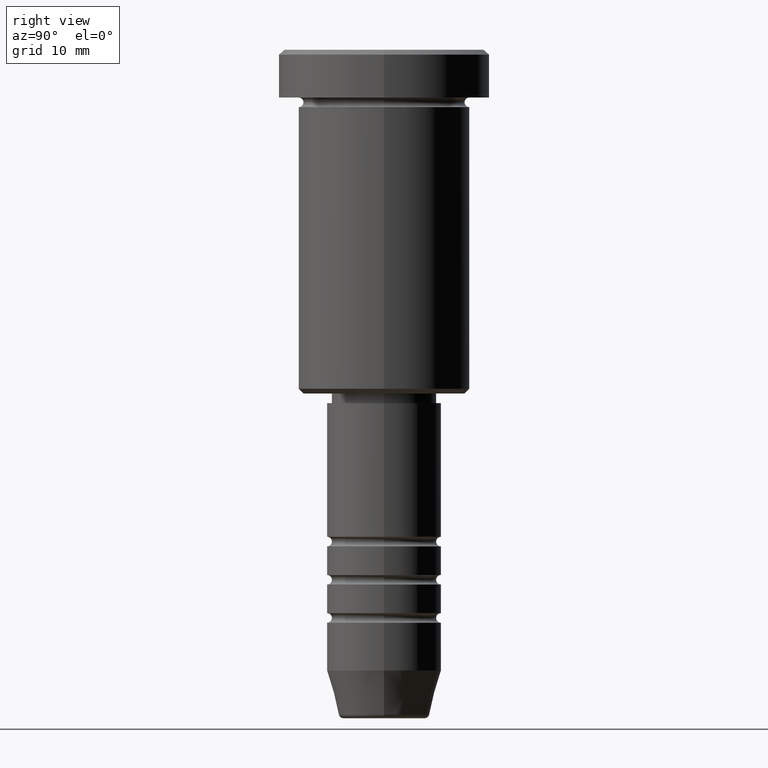
[diagram: clean part render]
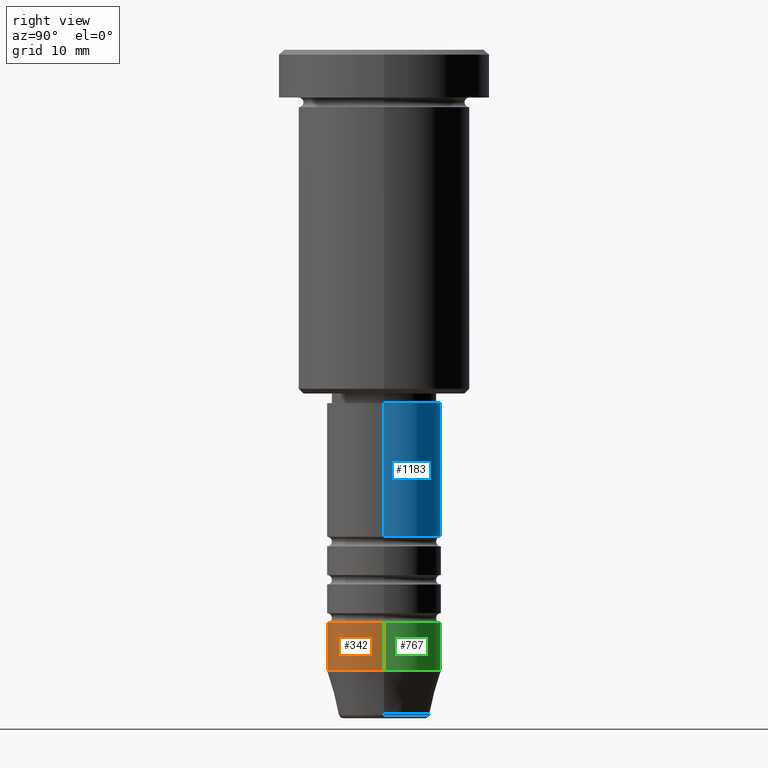
[diagram: same view with three faces highlighted in distinct colors, each labeled with its STEP entity id]
A machine part, right view with three faces highlighted in distinct colors.
Their STEP definitions:

[orange] entity #342 — the highlighted cylindrical surface (partial cylindrical patch) has radius 6 mm, axis along (-0, -0, 1).
#30 = AXIS2_PLACEMENT_3D ( 'NONE', #334, #918, #182 ) ;
#73 = EDGE_CURVE ( 'NONE', #648, #778, #1151, .T. ) ;
#78 = CARTESIAN_POINT ( 'NONE',  ( -6.000000000000000000, 7.347880794884119736E-16, -65.00000000000000000 ) ) ;
#109 = VECTOR ( 'NONE', #1150, 1000.000000000000000 ) ;
#153 = ORIENTED_EDGE ( 'NONE', *, *, #913, .T. ) ;
#178 = CARTESIAN_POINT ( 'NONE',  ( 6.000000000000000000, 0.000000000000000000, -65.00000000000000000 ) ) ;
#182 = DIRECTION ( 'NONE',  ( 1.000000000000000000, 0.000000000000000000, 0.000000000000000000 ) ) ;
#183 = DIRECTION ( 'NONE',  ( 1.000000000000000000, 0.000000000000000000, 0.000000000000000000 ) ) ;
#215 = LINE ( 'NONE', #931, #928 ) ;
#302 = VERTEX_POINT ( 'NONE', #78 ) ;
#317 = EDGE_LOOP ( 'NONE', ( #414, #714, #153, #503 ) ) ;
#318 = EDGE_CURVE ( 'NONE', #302, #344, #1118, .T. ) ;
#334 = CARTESIAN_POINT ( 'NONE',  ( 0.000000000000000000, 0.000000000000000000, -65.00000000000000000 ) ) ;
#342 = ADVANCED_FACE ( 'NONE', ( #747 ), #378, .T. ) ;
#344 = VERTEX_POINT ( 'NONE', #178 ) ;
#354 = CARTESIAN_POINT ( 'NONE',  ( 5.999999999999999112, 0.000000000000000000, -60.00000000000000711 ) ) ;
#378 = CYLINDRICAL_SURFACE ( 'NONE', #685, 6.000000000000000000 ) ;
#414 = ORIENTED_EDGE ( 'NONE', *, *, #1023, .F. ) ;
#503 = ORIENTED_EDGE ( 'NONE', *, *, #73, .F. ) ;
#581 = CARTESIAN_POINT ( 'NONE',  ( 0.000000000000000000, 0.000000000000000000, -60.00000000000000711 ) ) ;
#633 = LINE ( 'NONE', #740, #109 ) ;
#648 = VERTEX_POINT ( 'NONE', #1067 ) ;
#685 = AXIS2_PLACEMENT_3D ( 'NONE', #1137, #992, #812 ) ;
#714 = ORIENTED_EDGE ( 'NONE', *, *, #318, .T. ) ;
#740 = CARTESIAN_POINT ( 'NONE',  ( 6.000000000000000000, 0.000000000000000000, 0.000000000000000000 ) ) ;
#747 = FACE_OUTER_BOUND ( 'NONE', #317, .T. ) ;
#756 = AXIS2_PLACEMENT_3D ( 'NONE', #581, #826, #183 ) ;
#778 = VERTEX_POINT ( 'NONE', #354 ) ;
#812 = DIRECTION ( 'NONE',  ( 1.000000000000000000, 0.000000000000000000, 0.000000000000000000 ) ) ;
#826 = DIRECTION ( 'NONE',  ( -0.000000000000000000, -0.000000000000000000, 1.000000000000000000 ) ) ;
#913 = EDGE_CURVE ( 'NONE', #344, #778, #633, .T. ) ;
#918 = DIRECTION ( 'NONE',  ( -0.000000000000000000, -0.000000000000000000, 1.000000000000000000 ) ) ;
#928 = VECTOR ( 'NONE', #1040, 1000.000000000000000 ) ;
#931 = CARTESIAN_POINT ( 'NONE',  ( -6.000000000000000000, 7.347880794884119736E-16, 0.000000000000000000 ) ) ;
#992 = DIRECTION ( 'NONE',  ( -0.000000000000000000, -0.000000000000000000, 1.000000000000000000 ) ) ;
#1023 = EDGE_CURVE ( 'NONE', #302, #648, #215, .T. ) ;
#1040 = DIRECTION ( 'NONE',  ( -0.000000000000000000, -0.000000000000000000, 1.000000000000000000 ) ) ;
#1067 = CARTESIAN_POINT ( 'NONE',  ( -5.999999999999999112, 7.347880794884118750E-16, -60.00000000000000711 ) ) ;
#1118 = CIRCLE ( 'NONE', #30, 6.000000000000000000 ) ;
#1137 = CARTESIAN_POINT ( 'NONE',  ( 0.000000000000000000, 0.000000000000000000, 0.000000000000000000 ) ) ;
#1150 = DIRECTION ( 'NONE',  ( -0.000000000000000000, -0.000000000000000000, 1.000000000000000000 ) ) ;
#1151 = CIRCLE ( 'NONE', #756, 5.999999999999999112 ) ;

[blue] entity #1183 — the highlighted cylindrical surface (partial cylindrical patch) has radius 6 mm, axis along (-0, -0, 1).
#8 = LINE ( 'NONE', #769, #1004 ) ;
#282 = DIRECTION ( 'NONE',  ( 1.000000000000000000, 0.000000000000000000, 0.000000000000000000 ) ) ;
#310 = VECTOR ( 'NONE', #1085, 1000.000000000000000 ) ;
#314 = VERTEX_POINT ( 'NONE', #789 ) ;
#322 = VERTEX_POINT ( 'NONE', #460 ) ;
#328 = DIRECTION ( 'NONE',  ( 1.000000000000000000, 0.000000000000000000, 0.000000000000000000 ) ) ;
#337 = ORIENTED_EDGE ( 'NONE', *, *, #396, .T. ) ;
#339 = EDGE_CURVE ( 'NONE', #322, #314, #1037, .T. ) ;
#363 = ORIENTED_EDGE ( 'NONE', *, *, #1063, .F. ) ;
#394 = CARTESIAN_POINT ( 'NONE',  ( -6.000000000000000000, 7.347880794884119736E-16, -51.00000000000000000 ) ) ;
#396 = EDGE_CURVE ( 'NONE', #547, #314, #819, .T. ) ;
#422 = ORIENTED_EDGE ( 'NONE', *, *, #339, .F. ) ;
#460 = CARTESIAN_POINT ( 'NONE',  ( 6.000000000000000000, 0.000000000000000000, -37.00000000000000711 ) ) ;
#505 = CARTESIAN_POINT ( 'NONE',  ( 6.000000000000000000, 0.000000000000000000, -51.00000000000000000 ) ) ;
#547 = VERTEX_POINT ( 'NONE', #394 ) ;
#565 = CARTESIAN_POINT ( 'NONE',  ( -6.000000000000000000, 7.347880794884119736E-16, 0.000000000000000000 ) ) ;
#583 = DIRECTION ( 'NONE',  ( -0.000000000000000000, -0.000000000000000000, 1.000000000000000000 ) ) ;
#588 = AXIS2_PLACEMENT_3D ( 'NONE', #632, #712, #328 ) ;
#593 = AXIS2_PLACEMENT_3D ( 'NONE', #732, #623, #282 ) ;
#623 = DIRECTION ( 'NONE',  ( -0.000000000000000000, -0.000000000000000000, 1.000000000000000000 ) ) ;
#632 = CARTESIAN_POINT ( 'NONE',  ( 0.000000000000000000, 0.000000000000000000, 0.000000000000000000 ) ) ;
#639 = FACE_OUTER_BOUND ( 'NONE', #833, .T. ) ;
#684 = EDGE_CURVE ( 'NONE', #694, #547, #886, .T. ) ;
#693 = CARTESIAN_POINT ( 'NONE',  ( 0.000000000000000000, 0.000000000000000000, -51.00000000000000000 ) ) ;
#694 = VERTEX_POINT ( 'NONE', #505 ) ;
#712 = DIRECTION ( 'NONE',  ( -0.000000000000000000, -0.000000000000000000, 1.000000000000000000 ) ) ;
#732 = CARTESIAN_POINT ( 'NONE',  ( 0.000000000000000000, 0.000000000000000000, -37.00000000000000711 ) ) ;
#769 = CARTESIAN_POINT ( 'NONE',  ( 6.000000000000000000, 0.000000000000000000, 0.000000000000000000 ) ) ;
#787 = CYLINDRICAL_SURFACE ( 'NONE', #588, 6.000000000000000000 ) ;
#789 = CARTESIAN_POINT ( 'NONE',  ( -6.000000000000000000, 7.347880794884119736E-16, -37.00000000000000711 ) ) ;
#819 = LINE ( 'NONE', #565, #310 ) ;
#833 = EDGE_LOOP ( 'NONE', ( #859, #337, #422, #363 ) ) ;
#859 = ORIENTED_EDGE ( 'NONE', *, *, #684, .T. ) ;
#886 = CIRCLE ( 'NONE', #1139, 6.000000000000000000 ) ;
#1004 = VECTOR ( 'NONE', #583, 1000.000000000000000 ) ;
#1037 = CIRCLE ( 'NONE', #593, 6.000000000000000000 ) ;
#1048 = DIRECTION ( 'NONE',  ( 1.000000000000000000, 0.000000000000000000, 0.000000000000000000 ) ) ;
#1063 = EDGE_CURVE ( 'NONE', #694, #322, #8, .T. ) ;
#1085 = DIRECTION ( 'NONE',  ( -0.000000000000000000, -0.000000000000000000, 1.000000000000000000 ) ) ;
#1124 = DIRECTION ( 'NONE',  ( -0.000000000000000000, -0.000000000000000000, 1.000000000000000000 ) ) ;
#1139 = AXIS2_PLACEMENT_3D ( 'NONE', #693, #1124, #1048 ) ;
#1183 = ADVANCED_FACE ( 'NONE', ( #639 ), #787, .T. ) ;

[green] entity #767 — the highlighted cylindrical surface (partial cylindrical patch) has radius 6 mm, axis along (-0, -0, 1).
#78 = CARTESIAN_POINT ( 'NONE',  ( -6.000000000000000000, 7.347880794884119736E-16, -65.00000000000000000 ) ) ;
#109 = VECTOR ( 'NONE', #1150, 1000.000000000000000 ) ;
#116 = ORIENTED_EDGE ( 'NONE', *, *, #1023, .T. ) ;
#123 = ORIENTED_EDGE ( 'NONE', *, *, #1035, .F. ) ;
#125 = CARTESIAN_POINT ( 'NONE',  ( 0.000000000000000000, 0.000000000000000000, -60.00000000000000711 ) ) ;
#178 = CARTESIAN_POINT ( 'NONE',  ( 6.000000000000000000, 0.000000000000000000, -65.00000000000000000 ) ) ;
#181 = DIRECTION ( 'NONE',  ( -0.000000000000000000, -0.000000000000000000, 1.000000000000000000 ) ) ;
#211 = EDGE_CURVE ( 'NONE', #344, #302, #487, .T. ) ;
#215 = LINE ( 'NONE', #931, #928 ) ;
#302 = VERTEX_POINT ( 'NONE', #78 ) ;
#306 = CARTESIAN_POINT ( 'NONE',  ( 0.000000000000000000, 0.000000000000000000, -65.00000000000000000 ) ) ;
#316 = DIRECTION ( 'NONE',  ( -0.000000000000000000, -0.000000000000000000, 1.000000000000000000 ) ) ;
#326 = EDGE_LOOP ( 'NONE', ( #600, #116, #123, #382 ) ) ;
#344 = VERTEX_POINT ( 'NONE', #178 ) ;
#354 = CARTESIAN_POINT ( 'NONE',  ( 5.999999999999999112, 0.000000000000000000, -60.00000000000000711 ) ) ;
#382 = ORIENTED_EDGE ( 'NONE', *, *, #913, .F. ) ;
#416 = DIRECTION ( 'NONE',  ( 1.000000000000000000, 0.000000000000000000, 0.000000000000000000 ) ) ;
#487 = CIRCLE ( 'NONE', #591, 6.000000000000000000 ) ;
#494 = AXIS2_PLACEMENT_3D ( 'NONE', #125, #1033, #416 ) ;
#575 = AXIS2_PLACEMENT_3D ( 'NONE', #650, #181, #810 ) ;
#591 = AXIS2_PLACEMENT_3D ( 'NONE', #306, #316, #1030 ) ;
#600 = ORIENTED_EDGE ( 'NONE', *, *, #211, .T. ) ;
#633 = LINE ( 'NONE', #740, #109 ) ;
#645 = CYLINDRICAL_SURFACE ( 'NONE', #575, 6.000000000000000000 ) ;
#648 = VERTEX_POINT ( 'NONE', #1067 ) ;
#650 = CARTESIAN_POINT ( 'NONE',  ( 0.000000000000000000, 0.000000000000000000, 0.000000000000000000 ) ) ;
#740 = CARTESIAN_POINT ( 'NONE',  ( 6.000000000000000000, 0.000000000000000000, 0.000000000000000000 ) ) ;
#767 = ADVANCED_FACE ( 'NONE', ( #1090 ), #645, .T. ) ;
#778 = VERTEX_POINT ( 'NONE', #354 ) ;
#810 = DIRECTION ( 'NONE',  ( 1.000000000000000000, 0.000000000000000000, 0.000000000000000000 ) ) ;
#913 = EDGE_CURVE ( 'NONE', #344, #778, #633, .T. ) ;
#928 = VECTOR ( 'NONE', #1040, 1000.000000000000000 ) ;
#931 = CARTESIAN_POINT ( 'NONE',  ( -6.000000000000000000, 7.347880794884119736E-16, 0.000000000000000000 ) ) ;
#1006 = CIRCLE ( 'NONE', #494, 5.999999999999999112 ) ;
#1023 = EDGE_CURVE ( 'NONE', #302, #648, #215, .T. ) ;
#1030 = DIRECTION ( 'NONE',  ( 1.000000000000000000, 0.000000000000000000, 0.000000000000000000 ) ) ;
#1033 = DIRECTION ( 'NONE',  ( -0.000000000000000000, -0.000000000000000000, 1.000000000000000000 ) ) ;
#1035 = EDGE_CURVE ( 'NONE', #778, #648, #1006, .T. ) ;
#1040 = DIRECTION ( 'NONE',  ( -0.000000000000000000, -0.000000000000000000, 1.000000000000000000 ) ) ;
#1067 = CARTESIAN_POINT ( 'NONE',  ( -5.999999999999999112, 7.347880794884118750E-16, -60.00000000000000711 ) ) ;
#1090 = FACE_OUTER_BOUND ( 'NONE', #326, .T. ) ;
#1150 = DIRECTION ( 'NONE',  ( -0.000000000000000000, -0.000000000000000000, 1.000000000000000000 ) ) ;